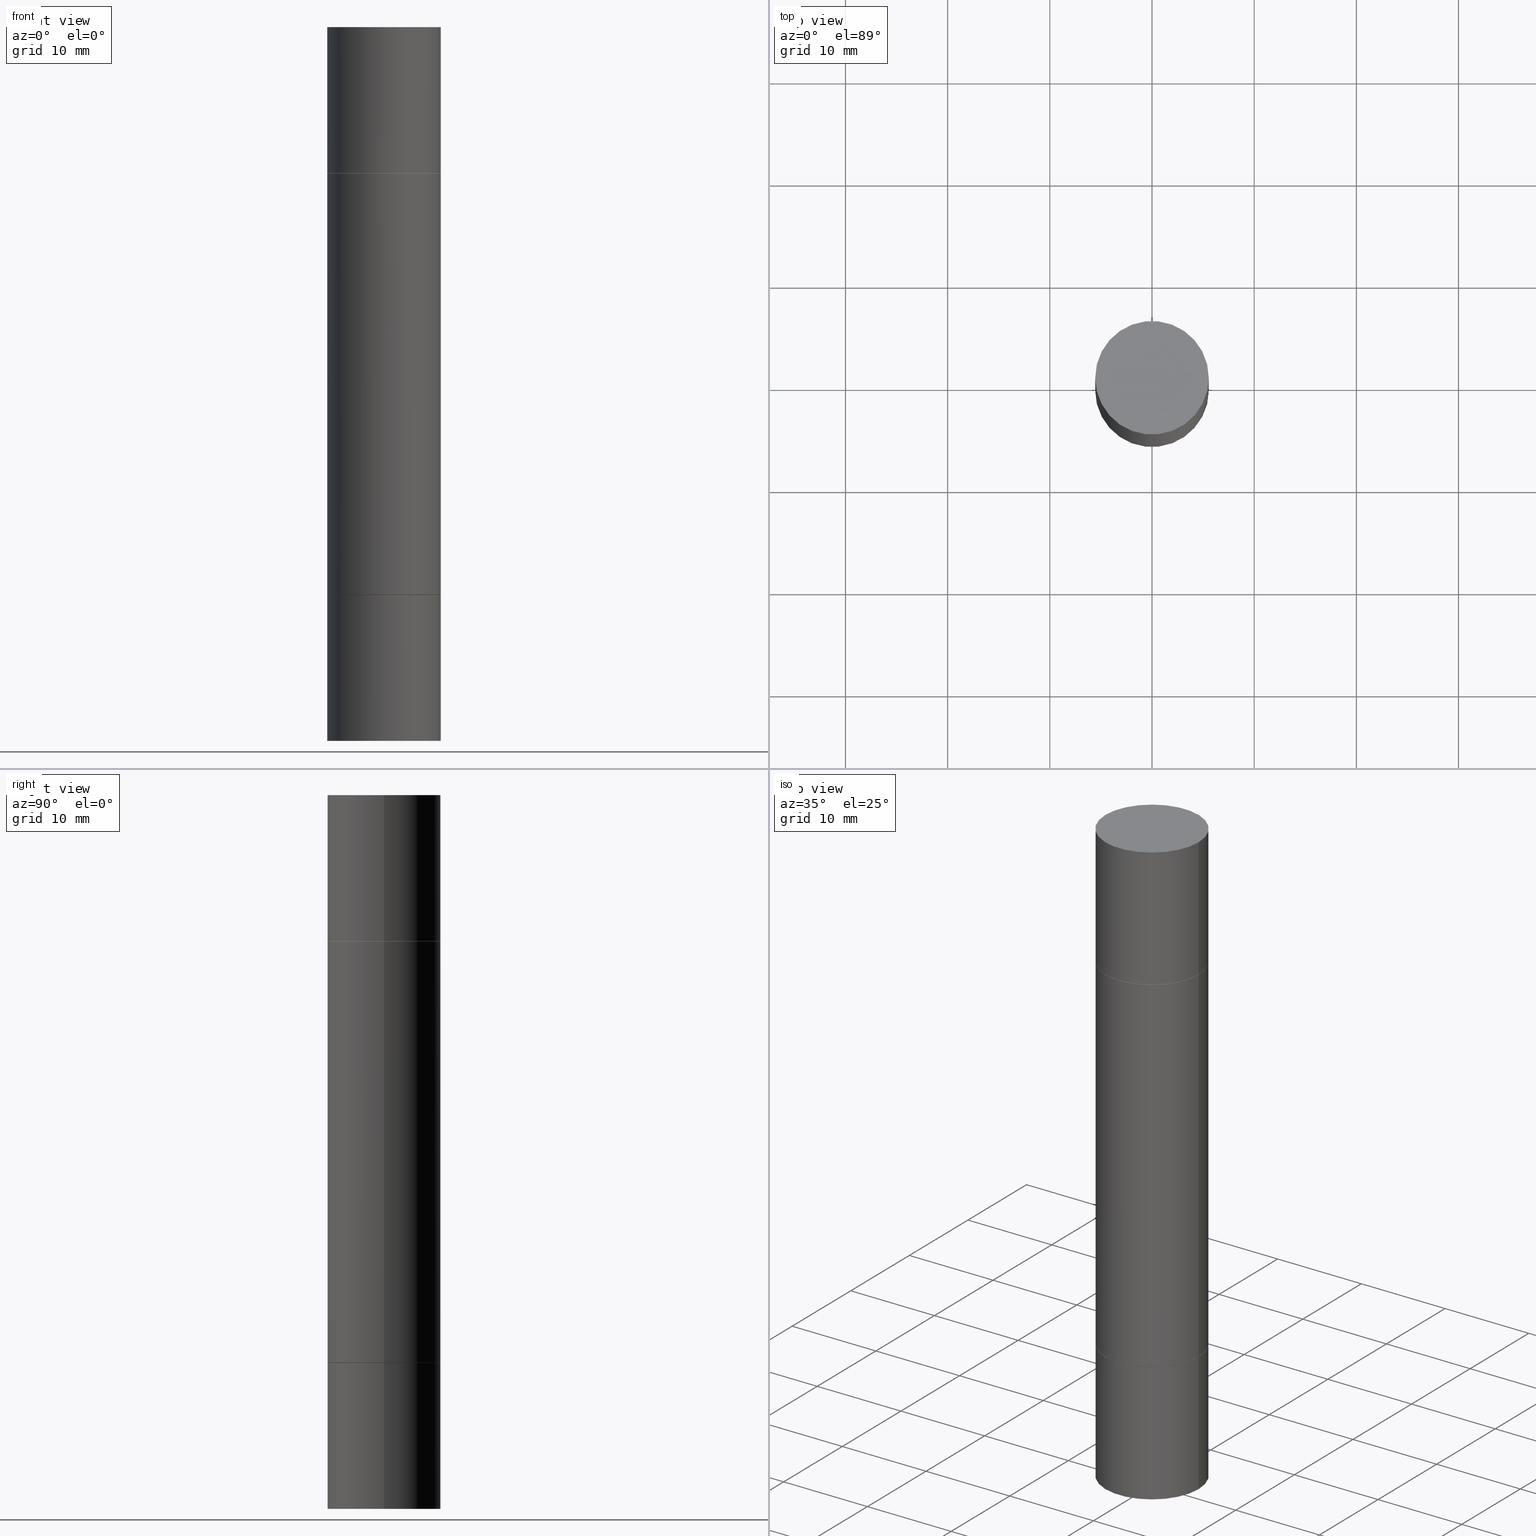
[diagram: canonical four-view strip — front | top / right | iso, engineering-drawing reading convention]
A machine part, canonical four-view strip (front | top / right | iso — engineering-drawing reading convention). The complete STEP part file that produces these views, byte-faithful:
ISO-10303-21;
HEADER;
FILE_DESCRIPTION (( 'STEP AP203' ),
    '1' );
FILE_NAME ('31437.STEP',
    '2024-03-04T15:41:57',
    ( '' ),
    ( '' ),
    'SwSTEP 2.0',
    'SolidWorks 2023',
    '' );
FILE_SCHEMA (( 'CONFIG_CONTROL_DESIGN' ));
ENDSEC;

DATA;
#1 = SECURITY_CLASSIFICATION_LEVEL ( 'unclassified' ) ;
#2 = LINE ( 'NONE', #635, #607 ) ;
#3 = EDGE_CURVE ( 'NONE', #366, #468, #472, .T. ) ;
#4 = DIRECTION ( 'NONE',  ( 1.000000000000000000, 0.000000000000000000, 0.000000000000000000 ) ) ;
#5 = ORIENTED_EDGE ( 'NONE', *, *, #199, .F. ) ;
#6 = CARTESIAN_POINT ( 'NONE',  ( 0.000000000000000000, 0.000000000000000000, -1.374999999999999778 ) ) ;
#7 = ORIENTED_EDGE ( 'NONE', *, *, #441, .T. ) ;
#8 = EDGE_CURVE ( 'NONE', #309, #414, #149, .T. ) ;
#9 = AXIS2_PLACEMENT_3D ( 'NONE', #184, #379, #597 ) ;
#10 = DIRECTION ( 'NONE',  ( 1.000000000000000000, -6.982962677686266711E-15, 0.000000000000000000 ) ) ;
#11 = AXIS2_PLACEMENT_3D ( 'NONE', #324, #44, #4 ) ;
#12 = EDGE_CURVE ( 'NONE', #598, #473, #453, .T. ) ;
#13 = CARTESIAN_POINT ( 'NONE',  ( 0.000000000000000000, 0.000000000000000000, 0.000000000000000000 ) ) ;
#14 = EDGE_LOOP ( 'NONE', ( #663, #269 ) ) ;
#15 = CARTESIAN_POINT ( 'NONE',  ( -0.2187499999999998612, -8.102777219780461591E-15, -2.749999999999999556 ) ) ;
#16 = CARTESIAN_POINT ( 'NONE',  ( 5.350685747933077986E-29, -1.961066936317747467E-15, -0.5619999999999996110 ) ) ;
#17 = ORIENTED_EDGE ( 'NONE', *, *, #202, .F. ) ;
#18 = FACE_OUTER_BOUND ( 'NONE', #547, .T. ) ;
#19 = ADVANCED_FACE ( 'NONE', ( #32 ), #548, .T. ) ;
#20 = CARTESIAN_POINT ( 'NONE',  ( -0.2177499999999999991, -4.655096935098871103E-16, -0.5619999999999996110 ) ) ;
#21 = AXIS2_PLACEMENT_3D ( 'NONE', #13, #228, #302 ) ;
#22 = LINE ( 'NONE', #592, #39 ) ;
#23 = CARTESIAN_POINT ( 'NONE',  ( 5.350685747933077986E-29, -7.639361169388800962E-15, -2.187999999999999723 ) ) ;
#24 = DIRECTION ( 'NONE',  ( -1.000000000000000000, 6.982962677686265922E-15, -4.876176775795935793E-29 ) ) ;
#25 = CARTESIAN_POINT ( 'NONE',  ( -0.2187500000000000000, -7.066155191128507043E-15, -2.187999999999999723 ) ) ;
#26 = ADVANCED_FACE ( 'NONE', ( #603 ), #290, .T. ) ;
#27 = AXIS2_PLACEMENT_3D ( 'NONE', #611, #461, #675 ) ;
#28 = DIRECTION ( 'NONE',  ( -2.445468806185136597E-29, 3.491481338843145583E-15, 1.000000000000000000 ) ) ;
#29 = AXIS2_PLACEMENT_3D ( 'NONE', #649, #646, #72 ) ;
#30 = AXIS2_PLACEMENT_3D ( 'NONE', #6, #674, #170 ) ;
#31 = CARTESIAN_POINT ( 'NONE',  ( 6.725039217009124520E-29, 1.937474974335603146E-18, 5.463695987328526437E-16 ) ) ;
#32 = FACE_OUTER_BOUND ( 'NONE', #395, .T. ) ;
#33 = DIRECTION ( 'NONE',  ( -2.438088387897960049E-29, 3.491481338843145188E-15, 1.000000000000000000 ) ) ;
#34 = ORIENTED_EDGE ( 'NONE', *, *, #3, .T. ) ;
#35 = CARTESIAN_POINT ( 'NONE',  ( -0.2187500000000000000, 1.554312234475219157E-15, -1.076017050993260622E-29 ) ) ;
#36 = EDGE_CURVE ( 'NONE', #206, #399, #588, .T. ) ;
#37 = AXIS2_PLACEMENT_3D ( 'NONE', #554, #317, #94 ) ;
#38 = DIRECTION ( 'NONE',  ( 0.000000000000000000, 1.000000000000000000, -3.746534391310991923E-15 ) ) ;
#39 = VECTOR ( 'NONE', #130, 39.37007874015748143 ) ;
#40 = CIRCLE ( 'NONE', #274, 0.2187500000000000000 ) ;
#41 = VECTOR ( 'NONE', #250, 39.37007874015748143 ) ;
#42 = FACE_OUTER_BOUND ( 'NONE', #451, .T. ) ;
#43 = DIRECTION ( 'NONE',  ( 1.000000000000000000, -6.982962677686269077E-15, 0.000000000000000000 ) ) ;
#44 = DIRECTION ( 'NONE',  ( 0.000000000000000000, 0.000000000000000000, 1.000000000000000000 ) ) ;
#45 = ADVANCED_FACE ( 'NONE', ( #384 ), #387, .T. ) ;
#46 = CARTESIAN_POINT ( 'NONE',  ( -0.2177499999999999991, -6.086855907922961200E-15, -2.187999999999999723 ) ) ;
#47 = DATE_AND_TIME ( #513, #336 ) ;
#48 = ORIENTED_EDGE ( 'NONE', *, *, #150, .T. ) ;
#49 = EDGE_CURVE ( 'NONE', #414, #226, #427, .T. ) ;
#50 = DIRECTION ( 'NONE',  ( -2.445468806185136597E-29, 3.491481338843145583E-15, 1.000000000000000000 ) ) ;
#51 = ORIENTED_EDGE ( 'NONE', *, *, #246, .T. ) ;
#52 = VECTOR ( 'NONE', #166, 39.37007874015748143 ) ;
#53 = CC_DESIGN_APPROVAL ( #239, ( #416 ) ) ;
#54 = APPROVAL_DATE_TIME ( #575, #169 ) ;
#55 = CC_DESIGN_PERSON_AND_ORGANIZATION_ASSIGNMENT ( #617, #357, ( #416 ) ) ;
#56 = DIRECTION ( 'NONE',  ( 0.7071067811865112684, -2.468850131081876830E-15, 0.7071067811865837660 ) ) ;
#57 = DIRECTION ( 'NONE',  ( 2.445468806185136597E-29, 3.492890411551752677E-15, 1.000000000000000000 ) ) ;
#58 = COORDINATED_UNIVERSAL_TIME_OFFSET ( 5, 0, .BEHIND. ) ;
#59 = ORIENTED_EDGE ( 'NONE', *, *, #587, .T. ) ;
#60 = ORIENTED_EDGE ( 'NONE', *, *, #640, .T. ) ;
#61 = DIRECTION ( 'NONE',  ( 1.000000000000000000, -6.982962677686262766E-15, 0.000000000000000000 ) ) ;
#62 = PERSON_AND_ORGANIZATION ( #428, #345 ) ;
#63 = CONICAL_SURFACE ( 'NONE', #626, 0.2177499999999999991, 0.7853981633973970977 ) ;
#64 = CARTESIAN_POINT ( 'NONE',  ( 0.2187500000000000000, -1.525585610769535201E-15, 5.463695987328526437E-16 ) ) ;
#65 = ADVANCED_FACE ( 'NONE', ( #255 ), #267, .T. ) ;
#66 = CIRCLE ( 'NONE', #435, 0.2187500000000000000 ) ;
#67 = DIRECTION ( 'NONE',  ( 1.000000000000000000, -6.982962677686266711E-15, 0.000000000000000000 ) ) ;
#68 = ORIENTED_EDGE ( 'NONE', *, *, #582, .F. ) ;
#69 = DIRECTION ( 'NONE',  ( 2.445468806185136597E-29, 3.492890411551752677E-15, 1.000000000000000000 ) ) ;
#70 = ORIENTED_EDGE ( 'NONE', *, *, #594, .F. ) ;
#71 = ORIENTED_EDGE ( 'NONE', *, *, #153, .F. ) ;
#72 = DIRECTION ( 'NONE',  ( 1.000000000000000000, -6.982962677686266711E-15, 0.000000000000000000 ) ) ;
#73 = CARTESIAN_POINT ( 'NONE',  ( 6.725039217009124520E-29, -9.601573681818649859E-15, -2.750000000000000000 ) ) ;
#74 = CARTESIAN_POINT ( 'NONE',  ( 5.350685747933077986E-29, -1.961066936317747467E-15, -0.5619999999999996110 ) ) ;
#75 = AXIS2_PLACEMENT_3D ( 'NONE', #124, #375, #644 ) ;
#76 = AXIS2_PLACEMENT_3D ( 'NONE', #31, #350, #92 ) ;
#77 = EDGE_CURVE ( 'NONE', #303, #471, #549, .T. ) ;
#78 = ORIENTED_EDGE ( 'NONE', *, *, #8, .T. ) ;
#79 = DIRECTION ( 'NONE',  ( 2.445468806185136597E-29, 3.492890411551752677E-15, 1.000000000000000000 ) ) ;
#80 = ADVANCED_FACE ( 'NONE', ( #558 ), #569, .F. ) ;
#81 = ADVANCED_FACE ( 'NONE', ( #301 ), #186, .T. ) ;
#82 = DIRECTION ( 'NONE',  ( 1.000000000000000000, -6.982962677686267499E-15, 0.000000000000000000 ) ) ;
#83 = ORIENTED_EDGE ( 'NONE', *, *, #176, .T. ) ;
#84 = ADVANCED_FACE ( 'NONE', ( #191 ), #601, .T. ) ;
#85 = CLOSED_SHELL ( 'NONE', ( #433, #660, #479, #511, #104, #19, #506, #122 ) ) ;
#86 = DIRECTION ( 'NONE',  ( 1.000000000000000000, -6.982962677686266711E-15, 0.000000000000000000 ) ) ;
#87 = CARTESIAN_POINT ( 'NONE',  ( 0.000000000000000000, -9.603511156792982543E-15, -2.749999999999999556 ) ) ;
#88 = AXIS2_PLACEMENT_3D ( 'NONE', #148, #559, #556 ) ;
#89 = CONICAL_SURFACE ( 'NONE', #306, 0.2177499999999999991, 0.7853981633973970977 ) ;
#90 = PLANE ( 'NONE',  #490 ) ;
#91 = EDGE_LOOP ( 'NONE', ( #586, #17 ) ) ;
#92 = DIRECTION ( 'NONE',  ( 1.000000000000000000, -6.982962677686266711E-15, 0.000000000000000000 ) ) ;
#93 = ORIENTED_EDGE ( 'NONE', *, *, #12, .T. ) ;
#94 = DIRECTION ( 'NONE',  ( 1.000000000000000000, -6.982962677686266711E-15, 0.000000000000000000 ) ) ;
#95 = LINE ( 'NONE', #98, #509 ) ;
#96 = DIRECTION ( 'NONE',  ( 2.438088387897959769E-29, 3.492890411551753071E-15, 1.000000000000000000 ) ) ;
#97 = CLOSED_SHELL ( 'NONE', ( #641, #282, #323, #434 ) ) ;
#98 = CARTESIAN_POINT ( 'NONE',  ( -0.2187500000000000000, -8.102777219780460014E-15, -2.749999999999999556 ) ) ;
#99 = CIRCLE ( 'NONE', #475, 0.2187499999999998612 ) ;
#100 = EDGE_CURVE ( 'NONE', #132, #309, #599, .T. ) ;
#101 = CARTESIAN_POINT ( 'NONE',  ( -0.2177499999999999991, -4.671934973029966481E-16, -0.5619999999999996110 ) ) ;
#102 = LINE ( 'NONE', #313, #562 ) ;
#103 = ORIENTED_EDGE ( 'NONE', *, *, #77, .T. ) ;
#104 = ADVANCED_FACE ( 'NONE', ( #220 ), #63, .T. ) ;
#105 = AXIS2_PLACEMENT_3D ( 'NONE', #662, #555, #442 ) ;
#106 = DIRECTION ( 'NONE',  ( -1.000000000000000000, 6.982962677686265922E-15, -9.839502134516470631E-33 ) ) ;
#107 = VERTEX_POINT ( 'NONE', #233 ) ;
#108 = ADVANCED_FACE ( 'NONE', ( #510 ), #460, .T. ) ;
#109 = ORIENTED_EDGE ( 'NONE', *, *, #421, .T. ) ;
#110 = PERSON_AND_ORGANIZATION ( #428, #345 ) ;
#111 = DIRECTION ( 'NONE',  ( -2.445468806185136877E-29, 3.491481338843145188E-15, 1.000000000000000000 ) ) ;
#112 = CIRCLE ( 'NONE', #415, 0.2187500000000000000 ) ;
#113 = COORDINATED_UNIVERSAL_TIME_OFFSET ( 5, 0, .BEHIND. ) ;
#114 = ORIENTED_EDGE ( 'NONE', *, *, #441, .F. ) ;
#115 = DIRECTION ( 'NONE',  ( 0.000000000000000000, 1.000000000000000000, -3.746534391310991923E-15 ) ) ;
#116 = CARTESIAN_POINT ( 'NONE',  ( -0.2187500000000000000, 5.211692063408169128E-16, 5.463695987328561936E-16 ) ) ;
#117 = PLANE ( 'NONE',  #187 ) ;
#118 = ORIENTED_EDGE ( 'NONE', *, *, #560, .T. ) ;
#119 = FACE_OUTER_BOUND ( 'NONE', #159, .T. ) ;
#120 = ORIENTED_EDGE ( 'NONE', *, *, #100, .F. ) ;
#121 = DIRECTION ( 'NONE',  ( 2.445468806185136597E-29, 3.492890411551752677E-15, 1.000000000000000000 ) ) ;
#122 = ADVANCED_FACE ( 'NONE', ( #147 ), #90, .F. ) ;
#123 = CIRCLE ( 'NONE', #497, 0.2177499999999999991 ) ;
#124 = CARTESIAN_POINT ( 'NONE',  ( 5.348240279126892383E-29, -7.635869688049957955E-15, -2.186999999999999833 ) ) ;
#125 = AXIS2_PLACEMENT_3D ( 'NONE', #347, #289, #612 ) ;
#126 = ORIENTED_EDGE ( 'NONE', *, *, #150, .F. ) ;
#127 = DIRECTION ( 'NONE',  ( 1.000000000000000000, -6.982962677686266711E-15, 0.000000000000000000 ) ) ;
#128 = CARTESIAN_POINT ( 'NONE',  ( -0.2187499999999999445, -4.638258897167772766E-16, -0.5629999999999997229 ) ) ;
#129 = DIRECTION ( 'NONE',  ( 1.000000000000000000, -6.982962677686266711E-15, 0.000000000000000000 ) ) ;
#130 = DIRECTION ( 'NONE',  ( -0.7071067811865112684, 2.381258160590891430E-15, -0.7071067811865837660 ) ) ;
#131 = DIRECTION ( 'NONE',  ( 1.000000000000000000, -6.982962677686262766E-15, 0.000000000000000000 ) ) ;
#132 = VERTEX_POINT ( 'NONE', #128 ) ;
#133 = VERTEX_POINT ( 'NONE', #536 ) ;
#134 = PLANE ( 'NONE',  #244 ) ;
#135 = CIRCLE ( 'NONE', #145, 0.2187499999999999445 ) ;
#136 = LOCAL_TIME ( 10, 41, 57.00000000000000000, #58 ) ;
#137 = EDGE_CURVE ( 'NONE', #346, #672, #362, .T. ) ;
#138 = ORIENTED_EDGE ( 'NONE', *, *, #616, .F. ) ;
#139 = DIRECTION ( 'NONE',  ( -2.445468806185136597E-29, -3.492890411551752677E-15, -1.000000000000000000 ) ) ;
#140 = ADVANCED_FACE ( 'NONE', ( #18 ), #333, .F. ) ;
#141 = CARTESIAN_POINT ( 'NONE',  ( 5.348240279126892383E-29, -7.635869688049957955E-15, -2.186999999999999833 ) ) ;
#142 = CYLINDRICAL_SURFACE ( 'NONE', #320, 0.2187499999999998612 ) ;
#143 = DIRECTION ( 'NONE',  ( 1.000000000000000000, -6.982962677686266711E-15, 4.876176775795935232E-29 ) ) ;
#144 = CARTESIAN_POINT ( 'NONE',  ( 3.362519608504561700E-29, -4.800786840909324141E-15, -1.374999999999999778 ) ) ;
#145 = AXIS2_PLACEMENT_3D ( 'NONE', #372, #79, #276 ) ;
#146 = ORIENTED_EDGE ( 'NONE', *, *, #561, .T. ) ;
#147 = FACE_OUTER_BOUND ( 'NONE', #368, .T. ) ;
#148 = CARTESIAN_POINT ( 'NONE',  ( 5.348240279126892383E-29, -1.964559826729300003E-15, -0.5629999999999997229 ) ) ;
#149 = LINE ( 'NONE', #666, #247 ) ;
#150 = EDGE_CURVE ( 'NONE', #241, #132, #22, .T. ) ;
#151 = AXIS2_PLACEMENT_3D ( 'NONE', #396, #620, #207 ) ;
#152 = CARTESIAN_POINT ( 'NONE',  ( 0.000000000000000000, -9.603511156792982543E-15, -2.749999999999999556 ) ) ;
#153 = EDGE_CURVE ( 'NONE', #412, #133, #390, .T. ) ;
#154 = VECTOR ( 'NONE', #526, 39.37007874015748143 ) ;
#155 = SECURITY_CLASSIFICATION ( '', '', #1 ) ;
#156 = DATE_TIME_ROLE ( 'creation_date' ) ;
#157 = CARTESIAN_POINT ( 'NONE',  ( 6.725039217009124520E-29, 1.937474974335603146E-18, 5.463695987328526437E-16 ) ) ;
#158 = EDGE_CURVE ( 'NONE', #473, #468, #615, .T. ) ;
#159 = EDGE_LOOP ( 'NONE', ( #284, #595, #632, #578 ) ) ;
#160 = CARTESIAN_POINT ( 'NONE',  ( 5.348240279126892383E-29, -1.964559826729300003E-15, -0.5629999999999997229 ) ) ;
#161 = APPROVAL_ROLE ( '' ) ;
#162 = PLANE ( 'NONE',  #30 ) ;
#163 = ORIENTED_EDGE ( 'NONE', *, *, #561, .F. ) ;
#164 = CLOSED_SHELL ( 'NONE', ( #557, #81, #295, #45 ) ) ;
#165 = PERSON_AND_ORGANIZATION_ROLE ( 'creator' ) ;
#166 = DIRECTION ( 'NONE',  ( 0.7071067811865112684, -7.407546758114119172E-15, -0.7071067811865837660 ) ) ;
#167 = ORIENTED_EDGE ( 'NONE', *, *, #312, .T. ) ;
#168 = AXIS2_PLACEMENT_3D ( 'NONE', #514, #623, #61 ) ;
#169 = APPROVAL ( #264, 'UNSPECIFIED' ) ;
#170 = DIRECTION ( 'NONE',  ( 0.000000000000000000, 1.000000000000000000, -3.492185875197449524E-15 ) ) ;
#171 = ORIENTED_EDGE ( 'NONE', *, *, #430, .F. ) ;
#172 = FACE_OUTER_BOUND ( 'NONE', #381, .T. ) ;
#173 = ORIENTED_EDGE ( 'NONE', *, *, #582, .T. ) ;
#174 = CARTESIAN_POINT ( 'NONE',  ( -0.2187500000000000000, 5.211692063408171100E-16, -0.5619999999999996110 ) ) ;
#175 = DIRECTION ( 'NONE',  ( 1.000000000000000000, -6.982962677686266711E-15, 0.000000000000000000 ) ) ;
#176 = EDGE_CURVE ( 'NONE', #241, #278, #262, .T. ) ;
#177 = AXIS2_PLACEMENT_3D ( 'NONE', #419, #121, #580 ) ;
#178 = DIRECTION ( 'NONE',  ( -2.438088387897959769E-29, -3.492890411551753071E-15, -1.000000000000000000 ) ) ;
#179 = ORIENTED_EDGE ( 'NONE', *, *, #458, .F. ) ;
#180 = DIRECTION ( 'NONE',  ( 1.000000000000000000, -6.982962677686265922E-15, 9.839502134516470631E-33 ) ) ;
#181 = LINE ( 'NONE', #377, #621 ) ;
#182 = EDGE_LOOP ( 'NONE', ( #167, #596, #422, #185 ) ) ;
#183 = VERTEX_POINT ( 'NONE', #328 ) ;
#184 = CARTESIAN_POINT ( 'NONE',  ( 5.350685747933077986E-29, -7.639361169388800962E-15, -2.187999999999999723 ) ) ;
#185 = ORIENTED_EDGE ( 'NONE', *, *, #391, .F. ) ;
#186 = PLANE ( 'NONE',  #645 ) ;
#187 = AXIS2_PLACEMENT_3D ( 'NONE', #325, #358, #106 ) ;
#188 = CARTESIAN_POINT ( 'NONE',  ( 6.725039217009124520E-29, 1.937474974335603146E-18, 5.463695987328526437E-16 ) ) ;
#189 = APPROVAL_PERSON_ORGANIZATION ( #454, #169, #161 ) ;
#190 = DIRECTION ( 'NONE',  ( 2.445468806185136597E-29, 3.492890411551752677E-15, 1.000000000000000000 ) ) ;
#191 = FACE_OUTER_BOUND ( 'NONE', #614, .T. ) ;
#192 = DIRECTION ( 'NONE',  ( -2.445468806185136877E-29, -3.492890411551753071E-15, -1.000000000000000000 ) ) ;
#193 = DIRECTION ( 'NONE',  ( 2.438088387897959769E-29, 3.492890411551753071E-15, 1.000000000000000000 ) ) ;
#194 = ORIENTED_EDGE ( 'NONE', *, *, #230, .F. ) ;
#195 = AXIS2_PLACEMENT_3D ( 'NONE', #214, #409, #400 ) ;
#196 = CC_DESIGN_APPROVAL ( #169, ( #155 ) ) ;
#197 = LINE ( 'NONE', #35, #41 ) ;
#198 = DIRECTION ( 'NONE',  ( -2.445468806185136877E-29, -3.492890411551753071E-15, -1.000000000000000000 ) ) ;
#199 = EDGE_CURVE ( 'NONE', #468, #590, #530, .T. ) ;
#200 = ORIENTED_EDGE ( 'NONE', *, *, #340, .T. ) ;
#201 = PRODUCT_DEFINITION_SHAPE ( 'NONE', 'NONE',  #341 ) ;
#202 = EDGE_CURVE ( 'NONE', #471, #303, #40, .T. ) ;
#203 = COORDINATED_UNIVERSAL_TIME_OFFSET ( 5, 0, .BEHIND. ) ;
#204 = VERTEX_POINT ( 'NONE', #315 ) ;
#205 = PLANE ( 'NONE',  #195 ) ;
#206 = VERTEX_POINT ( 'NONE', #116 ) ;
#207 = DIRECTION ( 'NONE',  ( 1.000000000000000000, -6.982962677686266711E-15, 0.000000000000000000 ) ) ;
#208 = DATE_AND_TIME ( #633, #136 ) ;
#209 = CARTESIAN_POINT ( 'NONE',  ( 0.2187499999999999445, -3.492082912473170057E-15, -0.5629999999999997229 ) ) ;
#210 = AXIS2_PLACEMENT_3D ( 'NONE', #440, #193, #661 ) ;
#211 = VERTEX_POINT ( 'NONE', #373 ) ;
#212 = SHAPE_DEFINITION_REPRESENTATION ( #201, #310 ) ;
#213 = CC_DESIGN_PERSON_AND_ORGANIZATION_ASSIGNMENT ( #353, #165, ( #341 ) ) ;
#214 = CARTESIAN_POINT ( 'NONE',  ( 1.527523085743937699E-15, 0.2187500000000000000, -5.463695987328526437E-16 ) ) ;
#215 = ORIENTED_EDGE ( 'NONE', *, *, #230, .T. ) ;
#216 = MANIFOLD_SOLID_BREP ( 'Mirror1[1]', #664 ) ;
#217 = MECHANICAL_CONTEXT ( 'NONE', #637, 'mechanical' ) ;
#218 = MANIFOLD_SOLID_BREP ( 'Mirror1[4]', #291 ) ;
#219 = CARTESIAN_POINT ( 'NONE',  ( 1.527523085743924091E-15, 0.2187499999999923395, -2.188000000000000611 ) ) ;
#220 = FACE_OUTER_BOUND ( 'NONE', #581, .T. ) ;
#221 = ORIENTED_EDGE ( 'NONE', *, *, #657, .T. ) ;
#222 = AXIS2_PLACEMENT_3D ( 'NONE', #589, #478, #420 ) ;
#223 = CIRCLE ( 'NONE', #263, 0.2187500000000000000 ) ;
#224 = PLANE ( 'NONE',  #392 ) ;
#225 = EDGE_CURVE ( 'NONE', #598, #366, #573, .T. ) ;
#226 = VERTEX_POINT ( 'NONE', #469 ) ;
#227 = MANIFOLD_SOLID_BREP ( 'Mirror1[3]', #97 ) ;
#228 = DIRECTION ( 'NONE',  ( -2.445468806185136597E-29, 3.491481338843145583E-15, 1.000000000000000000 ) ) ;
#229 = EDGE_LOOP ( 'NONE', ( #642, #680 ) ) ;
#230 = EDGE_CURVE ( 'NONE', #672, #183, #2, .T. ) ;
#231 = ORIENTED_EDGE ( 'NONE', *, *, #403, .F. ) ;
#232 = CARTESIAN_POINT ( 'NONE',  ( 5.350685747933077986E-29, -1.961066936317747467E-15, -0.5619999999999996110 ) ) ;
#233 = CARTESIAN_POINT ( 'NONE',  ( -0.2187500000000000000, 5.211692063408171100E-16, -0.5619999999999996110 ) ) ;
#234 = CIRCLE ( 'NONE', #485, 0.2187500000000000000 ) ;
#235 = CC_DESIGN_SECURITY_CLASSIFICATION ( #155, ( #416 ) ) ;
#236 = DIRECTION ( 'NONE',  ( 1.000000000000000000, -6.982962677686265922E-15, 9.839502134516470631E-33 ) ) ;
#237 = AXIS2_PLACEMENT_3D ( 'NONE', #352, #507, #397 ) ;
#238 = ORIENTED_EDGE ( 'NONE', *, *, #385, .T. ) ;
#239 = APPROVAL ( #522, 'UNSPECIFIED' ) ;
#240 = DIRECTION ( 'NONE',  ( 2.445468806185136597E-29, 3.492890411551752677E-15, 1.000000000000000000 ) ) ;
#241 = VERTEX_POINT ( 'NONE', #354 ) ;
#242 = CYLINDRICAL_SURFACE ( 'NONE', #600, 0.2187500000000000000 ) ;
#243 = LINE ( 'NONE', #546, #467 ) ;
#244 = AXIS2_PLACEMENT_3D ( 'NONE', #337, #178, #236 ) ;
#245 = DIRECTION ( 'NONE',  ( 1.000000000000000000, -6.982962677686266711E-15, 0.000000000000000000 ) ) ;
#246 = EDGE_CURVE ( 'NONE', #211, #590, #99, .T. ) ;
#247 = VECTOR ( 'NONE', #503, 39.37007874015748143 ) ;
#248 = DIRECTION ( 'NONE',  ( -2.445468806185136597E-29, -3.492890411551752677E-15, -1.000000000000000000 ) ) ;
#249 = ORIENTED_EDGE ( 'NONE', *, *, #153, .T. ) ;
#250 = DIRECTION ( 'NONE',  ( -2.445468806185136877E-29, 3.491481338843145188E-15, 1.000000000000000000 ) ) ;
#251 = CARTESIAN_POINT ( 'NONE',  ( 0.2187500000000000000, -1.113103424253685260E-14, -2.749999999999999556 ) ) ;
#252 = VECTOR ( 'NONE', #470, 39.37007874015748143 ) ;
#253 = EDGE_CURVE ( 'NONE', #672, #346, #655, .T. ) ;
#254 = CARTESIAN_POINT ( 'NONE',  ( 0.2187500000000000000, -1.112909676756251991E-14, -2.750000000000000000 ) ) ;
#255 = FACE_OUTER_BOUND ( 'NONE', #272, .T. ) ;
#256 = CALENDAR_DATE ( 2024, 4, 3 ) ;
#257 = CARTESIAN_POINT ( 'NONE',  ( 0.2187499999999999445, -9.163392773793829586E-15, -2.186999999999999833 ) ) ;
#258 = APPROVAL_ROLE ( '' ) ;
#259 = AXIS2_PLACEMENT_3D ( 'NONE', #349, #96, #443 ) ;
#260 = FACE_OUTER_BOUND ( 'NONE', #651, .T. ) ;
#261 = AXIS2_PLACEMENT_3D ( 'NONE', #160, #57, #129 ) ;
#262 = CIRCLE ( 'NONE', #177, 0.2177499999999999991 ) ;
#263 = AXIS2_PLACEMENT_3D ( 'NONE', #668, #190, #610 ) ;
#264 = APPROVAL_STATUS ( 'not_yet_approved' ) ;
#265 = CARTESIAN_POINT ( 'NONE',  ( 0.2177499999999999991, -3.481607059383932295E-15, -0.5619999999999996110 ) ) ;
#266 = AXIS2_PLACEMENT_3D ( 'NONE', #141, #670, #43 ) ;
#267 = CONICAL_SURFACE ( 'NONE', #151, 0.2177499999999999991, 0.7853981633973970977 ) ;
#268 = ORIENTED_EDGE ( 'NONE', *, *, #640, .F. ) ;
#269 = ORIENTED_EDGE ( 'NONE', *, *, #403, .T. ) ;
#270 = ORIENTED_EDGE ( 'NONE', *, *, #246, .F. ) ;
#271 = DIRECTION ( 'NONE',  ( -0.000000000000000000, -3.492185875197449130E-15, -1.000000000000000000 ) ) ;
#272 = EDGE_LOOP ( 'NONE', ( #281, #480, #356, #34 ) ) ;
#273 = CARTESIAN_POINT ( 'NONE',  ( 0.2177499999999999991, -3.481607059383932295E-15, -0.5619999999999996110 ) ) ;
#274 = AXIS2_PLACEMENT_3D ( 'NONE', #351, #455, #618 ) ;
#275 = ADVANCED_FACE ( 'NONE', ( #322 ), #162, .F. ) ;
#276 = DIRECTION ( 'NONE',  ( 1.000000000000000000, -6.982962677686266711E-15, 0.000000000000000000 ) ) ;
#277 = DIRECTION ( 'NONE',  ( -2.445468806185136877E-29, -3.492890411551753071E-15, -1.000000000000000000 ) ) ;
#278 = VERTEX_POINT ( 'NONE', #459 ) ;
#279 = DIRECTION ( 'NONE',  ( -2.445468806185136597E-29, 3.491481338843145583E-15, 1.000000000000000000 ) ) ;
#280 = FACE_OUTER_BOUND ( 'NONE', #606, .T. ) ;
#281 = ORIENTED_EDGE ( 'NONE', *, *, #158, .F. ) ;
#282 = ADVANCED_FACE ( 'NONE', ( #260 ), #205, .T. ) ;
#283 = AXIS2_PLACEMENT_3D ( 'NONE', #23, #286, #423 ) ;
#284 = ORIENTED_EDGE ( 'NONE', *, *, #657, .F. ) ;
#285 = CARTESIAN_POINT ( 'NONE',  ( 5.350685747933077986E-29, -1.961066936317747467E-15, -0.5619999999999996110 ) ) ;
#286 = DIRECTION ( 'NONE',  ( -2.445468806185136597E-29, 3.491481338843145583E-15, 1.000000000000000000 ) ) ;
#287 = DIRECTION ( 'NONE',  ( 2.438088387897960049E-29, -3.491481338843145188E-15, -1.000000000000000000 ) ) ;
#288 = CYLINDRICAL_SURFACE ( 'NONE', #222, 0.2187500000000000000 ) ;
#289 = DIRECTION ( 'NONE',  ( -2.445468806185136597E-29, -3.492890411551752677E-15, -1.000000000000000000 ) ) ;
#290 = PLANE ( 'NONE',  #210 ) ;
#291 = CLOSED_SHELL ( 'NONE', ( #84, #26, #80, #531 ) ) ;
#292 = DESIGN_CONTEXT ( 'detailed design', #551, 'design' ) ;
#293 = AXIS2_PLACEMENT_3D ( 'NONE', #144, #344, #38 ) ;
#294 = DIRECTION ( 'NONE',  ( 2.445468806185136597E-29, 3.492890411551752677E-15, 1.000000000000000000 ) ) ;
#295 = ADVANCED_FACE ( 'NONE', ( #518 ), #224, .F. ) ;
#296 = ORIENTED_EDGE ( 'NONE', *, *, #643, .T. ) ;
#297 = CARTESIAN_POINT ( 'NONE',  ( 5.350685747933077986E-29, -7.639361169388800962E-15, -2.187999999999999723 ) ) ;
#298 = AXIS2_PLACEMENT_3D ( 'NONE', #188, #604, #496 ) ;
#299 = LINE ( 'NONE', #251, #465 ) ;
#300 = ORIENTED_EDGE ( 'NONE', *, *, #540, .F. ) ;
#301 = FACE_OUTER_BOUND ( 'NONE', #229, .T. ) ;
#302 = DIRECTION ( 'NONE',  ( 1.000000000000000000, -6.982962677686266711E-15, 4.876176775795935232E-29 ) ) ;
#303 = VERTEX_POINT ( 'NONE', #413 ) ;
#304 = DIRECTION ( 'NONE',  ( -2.445468806185136877E-29, -3.492890411551753071E-15, -1.000000000000000000 ) ) ;
#305 = CONICAL_SURFACE ( 'NONE', #283, 0.2177499999999999991, 0.7853981633973970977 ) ;
#306 = AXIS2_PLACEMENT_3D ( 'NONE', #436, #553, #449 ) ;
#307 = DIRECTION ( 'NONE',  ( -0.7071067811865112684, 2.381258160590891430E-15, -0.7071067811865837660 ) ) ;
#308 = DIRECTION ( 'NONE',  ( 1.000000000000000000, -6.982962677686262766E-15, 0.000000000000000000 ) ) ;
#309 = VERTEX_POINT ( 'NONE', #209 ) ;
#310 = ADVANCED_BREP_SHAPE_REPRESENTATION ( '31437', ( #653, #216, #227, #218, #654, #11 ), #519 ) ;
#311 = APPLICATION_PROTOCOL_DEFINITION ( 'international standard', 'config_control_design', 1994, #637 ) ;
#312 = EDGE_CURVE ( 'NONE', #133, #412, #355, .T. ) ;
#313 = CARTESIAN_POINT ( 'NONE',  ( -0.2187500000000000000, -8.102777219780460014E-15, -2.749999999999999556 ) ) ;
#314 = ORIENTED_EDGE ( 'NONE', *, *, #340, .F. ) ;
#315 = CARTESIAN_POINT ( 'NONE',  ( -0.2187500000000000000, 5.211692063408169128E-16, 5.463695987328561936E-16 ) ) ;
#316 = PERSON_AND_ORGANIZATION_ROLE ( 'classification_officer' ) ;
#317 = DIRECTION ( 'NONE',  ( 2.445468806185136597E-29, 3.492890411551752677E-15, 1.000000000000000000 ) ) ;
#318 = CARTESIAN_POINT ( 'NONE',  ( 3.362519608504561700E-29, -4.800786840909324141E-15, -1.374999999999999778 ) ) ;
#319 = ORIENTED_EDGE ( 'NONE', *, *, #176, .F. ) ;
#320 = AXIS2_PLACEMENT_3D ( 'NONE', #444, #139, #82 ) ;
#321 = PERSON_AND_ORGANIZATION ( #428, #345 ) ;
#322 = FACE_OUTER_BOUND ( 'NONE', #602, .T. ) ;
#323 = ADVANCED_FACE ( 'NONE', ( #466 ), #117, .F. ) ;
#324 = CARTESIAN_POINT ( 'NONE',  ( 0.000000000000000000, 0.000000000000000000, 0.000000000000000000 ) ) ;
#325 = CARTESIAN_POINT ( 'NONE',  ( 1.527523085743924091E-15, 0.2187499999999980294, -0.5620000000000004992 ) ) ;
#326 = EDGE_CURVE ( 'NONE', #204, #359, #647, .T. ) ;
#327 = FACE_OUTER_BOUND ( 'NONE', #389, .T. ) ;
#328 = CARTESIAN_POINT ( 'NONE',  ( 0.2187500000000000000, -9.166884255132671016E-15, -2.187999999999999723 ) ) ;
#329 = CONICAL_SURFACE ( 'NONE', #29, 0.2177499999999999991, 0.7853981633973970977 ) ;
#330 = FACE_OUTER_BOUND ( 'NONE', #182, .T. ) ;
#331 = FACE_OUTER_BOUND ( 'NONE', #502, .T. ) ;
#332 = APPROVAL ( #525, 'UNSPECIFIED' ) ;
#333 = PLANE ( 'NONE',  #364 ) ;
#334 = DIRECTION ( 'NONE',  ( -2.445468806185136597E-29, -3.492890411551752677E-15, -1.000000000000000000 ) ) ;
#335 = AXIS2_PLACEMENT_3D ( 'NONE', #482, #532, #426 ) ;
#336 = LOCAL_TIME ( 10, 41, 57.00000000000000000, #203 ) ;
#337 = CARTESIAN_POINT ( 'NONE',  ( 5.350685747933077986E-29, -1.961066936317747467E-15, -0.5619999999999996110 ) ) ;
#338 = ORIENTED_EDGE ( 'NONE', *, *, #8, .F. ) ;
#339 = ORIENTED_EDGE ( 'NONE', *, *, #36, .F. ) ;
#340 = EDGE_CURVE ( 'NONE', #132, #226, #407, .T. ) ;
#341 = PRODUCT_DEFINITION ( 'UNKNOWN', '', #416, #292 ) ;
#342 = ORIENTED_EDGE ( 'NONE', *, *, #594, .T. ) ;
#343 = AXIS2_PLACEMENT_3D ( 'NONE', #157, #567, #10 ) ;
#344 = DIRECTION ( 'NONE',  ( -0.000000000000000000, -3.492185875197449130E-15, -1.000000000000000000 ) ) ;
#345 = ORGANIZATION ( 'UNSPECIFIED', 'UNSPECIFIED', '' ) ;
#346 = VERTEX_POINT ( 'NONE', #417 ) ;
#347 = CARTESIAN_POINT ( 'NONE',  ( 0.000000000000000000, -9.603511156792982543E-15, -2.749999999999999556 ) ) ;
#348 = CC_DESIGN_DATE_AND_TIME_ASSIGNMENT ( #47, #156, ( #341 ) ) ;
#349 = CARTESIAN_POINT ( 'NONE',  ( 1.527523085743924091E-15, 0.2187499999999980294, -0.5620000000000004992 ) ) ;
#350 = DIRECTION ( 'NONE',  ( 2.445468806185136597E-29, 3.492890411551752677E-15, 1.000000000000000000 ) ) ;
#351 = CARTESIAN_POINT ( 'NONE',  ( 5.350685747933077986E-29, -1.961066936317747467E-15, -0.5619999999999996110 ) ) ;
#352 = CARTESIAN_POINT ( 'NONE',  ( 5.350685747933077986E-29, -7.639361169388800962E-15, -2.187999999999999723 ) ) ;
#353 = PERSON_AND_ORGANIZATION ( #428, #345 ) ;
#354 = CARTESIAN_POINT ( 'NONE',  ( -0.2177499999999999991, -4.655096935098871103E-16, -0.5619999999999996110 ) ) ;
#355 = CIRCLE ( 'NONE', #380, 0.2177499999999999991 ) ;
#356 = ORIENTED_EDGE ( 'NONE', *, *, #225, .T. ) ;
#357 = PERSON_AND_ORGANIZATION_ROLE ( 'design_supplier' ) ;
#358 = DIRECTION ( 'NONE',  ( 2.438088387897959769E-29, 3.492890411551753071E-15, 1.000000000000000000 ) ) ;
#359 = VERTEX_POINT ( 'NONE', #64 ) ;
#360 = PERSON_AND_ORGANIZATION ( #428, #345 ) ;
#361 = CARTESIAN_POINT ( 'NONE',  ( 5.350685747933077986E-29, -1.961066936317747467E-15, -0.5619999999999996110 ) ) ;
#362 = CIRCLE ( 'NONE', #574, 0.2187500000000000000 ) ;
#363 = LINE ( 'NONE', #273, #52 ) ;
#364 = AXIS2_PLACEMENT_3D ( 'NONE', #285, #538, #180 ) ;
#365 = CARTESIAN_POINT ( 'NONE',  ( 5.350685747933077986E-29, -7.639361169388800962E-15, -2.187999999999999723 ) ) ;
#366 = VERTEX_POINT ( 'NONE', #625 ) ;
#367 = DIRECTION ( 'NONE',  ( 2.438088387897960049E-29, -3.491481338843145188E-15, -1.000000000000000000 ) ) ;
#368 = EDGE_LOOP ( 'NONE', ( #376, #71 ) ) ;
#369 = EDGE_CURVE ( 'NONE', #206, #471, #102, .T. ) ;
#370 = CYLINDRICAL_SURFACE ( 'NONE', #21, 0.2187500000000000000 ) ;
#371 = DIRECTION ( 'NONE',  ( -2.445468806185136597E-29, -3.492890411551752677E-15, -1.000000000000000000 ) ) ;
#372 = CARTESIAN_POINT ( 'NONE',  ( 5.348240279126892383E-29, -1.964559826729300003E-15, -0.5629999999999997229 ) ) ;
#373 = CARTESIAN_POINT ( 'NONE',  ( 0.2187499999999998612, -4.910196419563181534E-15, -1.374999999999999778 ) ) ;
#374 = CIRCLE ( 'NONE', #88, 0.2187499999999999445 ) ;
#375 = DIRECTION ( 'NONE',  ( -2.445468806185136597E-29, 3.491481338843145583E-15, 1.000000000000000000 ) ) ;
#376 = ORIENTED_EDGE ( 'NONE', *, *, #312, .F. ) ;
#377 = CARTESIAN_POINT ( 'NONE',  ( -0.2177499999999999991, -6.092154362271183602E-15, -2.187999999999999723 ) ) ;
#378 = ORIENTED_EDGE ( 'NONE', *, *, #137, .T. ) ;
#379 = DIRECTION ( 'NONE',  ( -2.445468806185136597E-29, 3.491481338843145583E-15, 1.000000000000000000 ) ) ;
#380 = AXIS2_PLACEMENT_3D ( 'NONE', #577, #50, #630 ) ;
#381 = EDGE_LOOP ( 'NONE', ( #300, #249, #533, #171 ) ) ;
#382 = APPROVAL_PERSON_ORGANIZATION ( #321, #239, #258 ) ;
#383 =( LENGTH_UNIT ( ) NAMED_UNIT ( * ) SI_UNIT ( $, .METRE. ) );
#384 = FACE_OUTER_BOUND ( 'NONE', #529, .T. ) ;
#385 = EDGE_CURVE ( 'NONE', #278, #309, #363, .T. ) ;
#386 = CARTESIAN_POINT ( 'NONE',  ( 0.2177499999999999991, -3.481607059383932295E-15, -0.5619999999999996110 ) ) ;
#387 = CYLINDRICAL_SURFACE ( 'NONE', #648, 0.2187500000000000000 ) ;
#388 =( NAMED_UNIT ( * ) SI_UNIT ( $, .STERADIAN. ) SOLID_ANGLE_UNIT ( ) );
#389 = EDGE_LOOP ( 'NONE', ( #5, #631, #342, #163 ) ) ;
#390 = CIRCLE ( 'NONE', #237, 0.2177499999999999991 ) ;
#391 = EDGE_CURVE ( 'NONE', #133, #414, #474, .T. ) ;
#392 = AXIS2_PLACEMENT_3D ( 'NONE', #219, #367, #678 ) ;
#393 = DIRECTION ( 'NONE',  ( -2.445468806185136877E-29, -3.492890411551753071E-15, -1.000000000000000000 ) ) ;
#394 = FACE_OUTER_BOUND ( 'NONE', #457, .T. ) ;
#395 = EDGE_LOOP ( 'NONE', ( #314, #68, #78, #650 ) ) ;
#396 = CARTESIAN_POINT ( 'NONE',  ( 5.350685747933077986E-29, -1.961066936317747467E-15, -0.5619999999999996110 ) ) ;
#397 = DIRECTION ( 'NONE',  ( 1.000000000000000000, -6.982962677686266711E-15, 0.000000000000000000 ) ) ;
#398 = PERSON_AND_ORGANIZATION_ROLE ( 'design_owner' ) ;
#399 = VERTEX_POINT ( 'NONE', #565 ) ;
#400 = DIRECTION ( 'NONE',  ( -1.000000000000000000, 6.982962677686265922E-15, -9.839502134516470631E-33 ) ) ;
#401 = CIRCLE ( 'NONE', #9, 0.2187500000000000000 ) ;
#402 = DIRECTION ( 'NONE',  ( 1.000000000000000000, -6.982962677686262766E-15, 0.000000000000000000 ) ) ;
#403 = EDGE_CURVE ( 'NONE', #544, #183, #234, .T. ) ;
#404 = PRODUCT ( '31437', '31437', '', ( #217 ) ) ;
#405 = APPROVAL_ROLE ( '' ) ;
#406 = AXIS2_PLACEMENT_3D ( 'NONE', #87, #248, #437 ) ;
#407 = LINE ( 'NONE', #524, #154 ) ;
#408 = ORIENTED_EDGE ( 'NONE', *, *, #616, .T. ) ;
#409 = DIRECTION ( 'NONE',  ( 2.438088387897959769E-29, 3.492890411551753071E-15, 1.000000000000000000 ) ) ;
#410 = ORIENTED_EDGE ( 'NONE', *, *, #326, .T. ) ;
#411 = DATE_AND_TIME ( #256, #476 ) ;
#412 = VERTEX_POINT ( 'NONE', #46 ) ;
#413 = CARTESIAN_POINT ( 'NONE',  ( 0.2187500000000000000, -3.488590022061618704E-15, -0.5619999999999996110 ) ) ;
#414 = VERTEX_POINT ( 'NONE', #257 ) ;
#415 = AXIS2_PLACEMENT_3D ( 'NONE', #16, #69, #534 ) ;
#416 = PRODUCT_DEFINITION_FORMATION_WITH_SPECIFIED_SOURCE ( 'ANY', '', #404, .NOT_KNOWN. ) ;
#417 = CARTESIAN_POINT ( 'NONE',  ( -0.2187500000000000000, -7.066155191128507043E-15, -2.750000000000000000 ) ) ;
#418 = ORIENTED_EDGE ( 'NONE', *, *, #199, .T. ) ;
#419 = CARTESIAN_POINT ( 'NONE',  ( 5.350685747933077986E-29, -1.961066936317747467E-15, -0.5619999999999996110 ) ) ;
#420 = DIRECTION ( 'NONE',  ( 1.000000000000000000, -6.982962677686262766E-15, 0.000000000000000000 ) ) ;
#421 = EDGE_CURVE ( 'NONE', #359, #204, #66, .T. ) ;
#422 = ORIENTED_EDGE ( 'NONE', *, *, #49, .F. ) ;
#423 = DIRECTION ( 'NONE',  ( 1.000000000000000000, -6.982962677686266711E-15, 0.000000000000000000 ) ) ;
#424 = ORIENTED_EDGE ( 'NONE', *, *, #643, .F. ) ;
#425 = CIRCLE ( 'NONE', #75, 0.2187499999999999445 ) ;
#426 = DIRECTION ( 'NONE',  ( 1.000000000000000000, -6.982962677686267499E-15, 0.000000000000000000 ) ) ;
#427 = CIRCLE ( 'NONE', #266, 0.2187499999999999445 ) ;
#428 = PERSON ( 'UNSPECIFIED', 'UNSPECIFIED', 'UNSPECIFIED', ('UNSPECIFIED'), ('UNSPECIFIED'), ('UNSPECIFIED') ) ;
#429 = EDGE_LOOP ( 'NONE', ( #619, #424, #59, #103 ) ) ;
#430 = EDGE_CURVE ( 'NONE', #226, #414, #425, .T. ) ;
#431 = CARTESIAN_POINT ( 'NONE',  ( 0.000000000000000000, -9.603511156792982543E-15, -2.749999999999999556 ) ) ;
#432 = CARTESIAN_POINT ( 'NONE',  ( -0.2187499999999999445, -4.638258897167772766E-16, -0.5629999999999997229 ) ) ;
#433 = ADVANCED_FACE ( 'NONE', ( #330 ), #305, .T. ) ;
#434 = ADVANCED_FACE ( 'NONE', ( #119 ), #242, .T. ) ;
#435 = AXIS2_PLACEMENT_3D ( 'NONE', #579, #652, #486 ) ;
#436 = CARTESIAN_POINT ( 'NONE',  ( 5.350685747933077986E-29, -1.961066936317747467E-15, -0.5619999999999996110 ) ) ;
#437 = DIRECTION ( 'NONE',  ( 1.000000000000000000, -6.982962677686267499E-15, 0.000000000000000000 ) ) ;
#438 = ORIENTED_EDGE ( 'NONE', *, *, #587, .F. ) ;
#439 = CYLINDRICAL_SURFACE ( 'NONE', #125, 0.2187500000000000000 ) ;
#440 = CARTESIAN_POINT ( 'NONE',  ( 1.527523085743937699E-15, 0.2187500000000000000, -5.463695987328526437E-16 ) ) ;
#441 = EDGE_CURVE ( 'NONE', #278, #241, #448, .T. ) ;
#442 = DIRECTION ( 'NONE',  ( 1.000000000000000000, -6.982962677686267499E-15, 0.000000000000000000 ) ) ;
#443 = DIRECTION ( 'NONE',  ( -1.000000000000000000, 6.982962677686265922E-15, -9.839502134516470631E-33 ) ) ;
#444 = CARTESIAN_POINT ( 'NONE',  ( 0.000000000000000000, -9.603511156792982543E-15, -2.749999999999999556 ) ) ;
#445 = CC_DESIGN_DATE_AND_TIME_ASSIGNMENT ( #208, #624, ( #155 ) ) ;
#446 = EDGE_LOOP ( 'NONE', ( #296, #639 ) ) ;
#447 = UNCERTAINTY_MEASURE_WITH_UNIT (LENGTH_MEASURE( 1.000000000000000082E-05 ), #495, 'distance_accuracy_value', 'NONE');
#448 = CIRCLE ( 'NONE', #541, 0.2177499999999999991 ) ;
#449 = DIRECTION ( 'NONE',  ( 1.000000000000000000, -6.982962677686266711E-15, 0.000000000000000000 ) ) ;
#450 = LOCAL_TIME ( 10, 41, 57.00000000000000000, #113 ) ;
#451 = EDGE_LOOP ( 'NONE', ( #120, #200, #481, #338 ) ) ;
#452 = EDGE_LOOP ( 'NONE', ( #491, #138 ) ) ;
#453 = CIRCLE ( 'NONE', #523, 0.2177499999999999991 ) ;
#454 = PERSON_AND_ORGANIZATION ( #428, #345 ) ;
#455 = DIRECTION ( 'NONE',  ( 2.445468806185136597E-29, 3.492890411551752677E-15, 1.000000000000000000 ) ) ;
#456 = ORIENTED_EDGE ( 'NONE', *, *, #385, .F. ) ;
#457 = EDGE_LOOP ( 'NONE', ( #500, #221, #408, #179 ) ) ;
#458 = EDGE_CURVE ( 'NONE', #359, #658, #484, .T. ) ;
#459 = CARTESIAN_POINT ( 'NONE',  ( 0.2177499999999999991, -3.481607059383932295E-15, -0.5619999999999996110 ) ) ;
#460 = CYLINDRICAL_SURFACE ( 'NONE', #105, 0.2187499999999998612 ) ;
#461 = DIRECTION ( 'NONE',  ( 2.445468806185136597E-29, 3.492890411551752677E-15, 1.000000000000000000 ) ) ;
#462 = ADVANCED_FACE ( 'NONE', ( #327 ), #584, .T. ) ;
#463 = APPROVAL_DATE_TIME ( #411, #239 ) ;
#464 = AXIS2_PLACEMENT_3D ( 'NONE', #152, #521, #402 ) ;
#465 = VECTOR ( 'NONE', #192, 39.37007874015748143 ) ;
#466 = FACE_OUTER_BOUND ( 'NONE', #452, .T. ) ;
#467 = VECTOR ( 'NONE', #393, 39.37007874015748143 ) ;
#468 = VERTEX_POINT ( 'NONE', #432 ) ;
#469 = CARTESIAN_POINT ( 'NONE',  ( -0.2187499999999999445, -3.300052903896800034E-15, -2.186999999999999833 ) ) ;
#470 = DIRECTION ( 'NONE',  ( 0.7071067811865112684, -7.407546758114119172E-15, -0.7071067811865837660 ) ) ;
#471 = VERTEX_POINT ( 'NONE', #174 ) ;
#472 = CIRCLE ( 'NONE', #37, 0.2187499999999999445 ) ;
#473 = VERTEX_POINT ( 'NONE', #20 ) ;
#474 = LINE ( 'NONE', #638, #667 ) ;
#475 = AXIS2_PLACEMENT_3D ( 'NONE', #318, #271, #115 ) ;
#476 = LOCAL_TIME ( 10, 41, 57.00000000000000000, #563 ) ;
#477 = PRODUCT_RELATED_PRODUCT_CATEGORY ( 'detail', '', ( #404 ) ) ;
#478 = DIRECTION ( 'NONE',  ( -2.445468806185136597E-29, -3.492890411551752677E-15, -1.000000000000000000 ) ) ;
#479 = ADVANCED_FACE ( 'NONE', ( #331 ), #550, .T. ) ;
#480 = ORIENTED_EDGE ( 'NONE', *, *, #12, .F. ) ;
#481 = ORIENTED_EDGE ( 'NONE', *, *, #430, .T. ) ;
#482 = CARTESIAN_POINT ( 'NONE',  ( 0.000000000000000000, -9.603511156792982543E-15, -2.749999999999999556 ) ) ;
#483 = DIRECTION ( 'NONE',  ( 1.000000000000000000, -6.982962677686262766E-15, 0.000000000000000000 ) ) ;
#484 = LINE ( 'NONE', #528, #634 ) ;
#485 = AXIS2_PLACEMENT_3D ( 'NONE', #365, #576, #308 ) ;
#486 = DIRECTION ( 'NONE',  ( 1.000000000000000000, -6.982962677686266711E-15, 0.000000000000000000 ) ) ;
#487 = EDGE_CURVE ( 'NONE', #658, #107, #112, .T. ) ;
#488 = ORIENTED_EDGE ( 'NONE', *, *, #225, .F. ) ;
#489 = FACE_OUTER_BOUND ( 'NONE', #679, .T. ) ;
#490 = AXIS2_PLACEMENT_3D ( 'NONE', #297, #33, #591 ) ;
#491 = ORIENTED_EDGE ( 'NONE', *, *, #487, .F. ) ;
#492 = EDGE_CURVE ( 'NONE', #183, #544, #401, .T. ) ;
#493 = CC_DESIGN_PERSON_AND_ORGANIZATION_ASSIGNMENT ( #110, #316, ( #155 ) ) ;
#494 = CARTESIAN_POINT ( 'NONE',  ( 1.527523085743937699E-15, 0.2187499999999903966, -2.750000000000000444 ) ) ;
#495 =( CONVERSION_BASED_UNIT ( 'INCH', #665 ) LENGTH_UNIT ( ) NAMED_UNIT ( #627 ) );
#496 = DIRECTION ( 'NONE',  ( 1.000000000000000000, -6.982962677686266711E-15, 0.000000000000000000 ) ) ;
#497 = AXIS2_PLACEMENT_3D ( 'NONE', #605, #294, #86 ) ;
#498 = DIRECTION ( 'NONE',  ( 2.445468806185136597E-29, 3.492890411551752677E-15, 1.000000000000000000 ) ) ;
#499 = ORIENTED_EDGE ( 'NONE', *, *, #158, .T. ) ;
#500 = ORIENTED_EDGE ( 'NONE', *, *, #326, .F. ) ;
#501 = CARTESIAN_POINT ( 'NONE',  ( -0.2187499999999998612, -1.881939396806789345E-15, -1.374999999999999778 ) ) ;
#502 = EDGE_LOOP ( 'NONE', ( #319, #48, #537, #456 ) ) ;
#503 = DIRECTION ( 'NONE',  ( -2.445468806185136877E-29, -3.492890411551753071E-15, -1.000000000000000000 ) ) ;
#504 = FACE_OUTER_BOUND ( 'NONE', #505, .T. ) ;
#505 = EDGE_LOOP ( 'NONE', ( #570, #499, #572, #488 ) ) ;
#506 = ADVANCED_FACE ( 'NONE', ( #172 ), #329, .T. ) ;
#507 = DIRECTION ( 'NONE',  ( -2.445468806185136597E-29, 3.491481338843145583E-15, 1.000000000000000000 ) ) ;
#508 = CARTESIAN_POINT ( 'NONE',  ( 0.2187500000000000000, -3.488590022061618704E-15, -0.5619999999999996110 ) ) ;
#509 = VECTOR ( 'NONE', #304, 39.37007874015748143 ) ;
#510 = FACE_OUTER_BOUND ( 'NONE', #535, .T. ) ;
#511 = ADVANCED_FACE ( 'NONE', ( #280 ), #134, .F. ) ;
#512 = DIRECTION ( 'NONE',  ( -2.445468806185136877E-29, -3.492890411551753071E-15, -1.000000000000000000 ) ) ;
#513 = CALENDAR_DATE ( 2024, 4, 3 ) ;
#514 = CARTESIAN_POINT ( 'NONE',  ( 6.725039217009124520E-29, -9.601573681818649859E-15, -2.750000000000000000 ) ) ;
#515 = COORDINATED_UNIVERSAL_TIME_OFFSET ( 5, 0, .BEHIND. ) ;
#516 = VECTOR ( 'NONE', #307, 39.37007874015748143 ) ;
#517 = AXIS2_PLACEMENT_3D ( 'NONE', #74, #334, #67 ) ;
#518 = FACE_OUTER_BOUND ( 'NONE', #14, .T. ) ;
#519 =( GEOMETRIC_REPRESENTATION_CONTEXT ( 3 ) GLOBAL_UNCERTAINTY_ASSIGNED_CONTEXT ( ( #447 ) ) GLOBAL_UNIT_ASSIGNED_CONTEXT ( ( #495, #659, #388 ) ) REPRESENTATION_CONTEXT ( 'NONE', 'WORKASPACE' ) );
#520 = EDGE_CURVE ( 'NONE', #468, #366, #135, .T. ) ;
#521 = DIRECTION ( 'NONE',  ( -2.445468806185136597E-29, -3.492890411551752677E-15, -1.000000000000000000 ) ) ;
#522 = APPROVAL_STATUS ( 'not_yet_approved' ) ;
#523 = AXIS2_PLACEMENT_3D ( 'NONE', #361, #498, #245 ) ;
#524 = CARTESIAN_POINT ( 'NONE',  ( -0.2187499999999998612, -8.102777219780461591E-15, -2.749999999999999556 ) ) ;
#525 = APPROVAL_STATUS ( 'not_yet_approved' ) ;
#526 = DIRECTION ( 'NONE',  ( -2.445468806185136877E-29, -3.492890411551753071E-15, -1.000000000000000000 ) ) ;
#527 = CARTESIAN_POINT ( 'NONE',  ( 5.350685747933077986E-29, -1.961066936317747467E-15, -0.5619999999999996110 ) ) ;
#528 = CARTESIAN_POINT ( 'NONE',  ( 0.2187500000000000000, -1.113103424253685260E-14, -2.749999999999999556 ) ) ;
#529 = EDGE_LOOP ( 'NONE', ( #268, #378, #215, #231 ) ) ;
#530 = LINE ( 'NONE', #15, #676 ) ;
#531 = ADVANCED_FACE ( 'NONE', ( #543 ), #288, .T. ) ;
#532 = DIRECTION ( 'NONE',  ( -2.445468806185136597E-29, -3.492890411551752677E-15, -1.000000000000000000 ) ) ;
#533 = ORIENTED_EDGE ( 'NONE', *, *, #391, .T. ) ;
#534 = DIRECTION ( 'NONE',  ( 1.000000000000000000, -6.982962677686267499E-15, 0.000000000000000000 ) ) ;
#535 = EDGE_LOOP ( 'NONE', ( #545, #418, #270, #70 ) ) ;
#536 = CARTESIAN_POINT ( 'NONE',  ( 0.2177499999999999991, -9.159901292454986579E-15, -2.187999999999999723 ) ) ;
#537 = ORIENTED_EDGE ( 'NONE', *, *, #100, .T. ) ;
#538 = DIRECTION ( 'NONE',  ( -2.438088387897959769E-29, -3.492890411551753071E-15, -1.000000000000000000 ) ) ;
#539 = DIRECTION ( 'NONE',  ( -2.445468806185136597E-29, -3.492890411551752677E-15, -1.000000000000000000 ) ) ;
#540 = EDGE_CURVE ( 'NONE', #412, #226, #181, .T. ) ;
#541 = AXIS2_PLACEMENT_3D ( 'NONE', #232, #240, #127 ) ;
#542 = CIRCLE ( 'NONE', #76, 0.2187500000000000000 ) ;
#543 = FACE_OUTER_BOUND ( 'NONE', #429, .T. ) ;
#544 = VERTEX_POINT ( 'NONE', #25 ) ;
#545 = ORIENTED_EDGE ( 'NONE', *, *, #520, .F. ) ;
#546 = CARTESIAN_POINT ( 'NONE',  ( 0.2187499999999998612, -1.113103424253685260E-14, -2.749999999999999556 ) ) ;
#547 = EDGE_LOOP ( 'NONE', ( #93, #118 ) ) ;
#548 = CYLINDRICAL_SURFACE ( 'NONE', #406, 0.2187499999999998612 ) ;
#549 = CIRCLE ( 'NONE', #27, 0.2187500000000000000 ) ;
#550 = CONICAL_SURFACE ( 'NONE', #517, 0.2177499999999999991, 0.7853981633973970977 ) ;
#551 = APPLICATION_CONTEXT ( 'configuration controlled 3d designs of mechanical parts and assemblies' ) ;
#552 = ORIENTED_EDGE ( 'NONE', *, *, #253, .T. ) ;
#553 = DIRECTION ( 'NONE',  ( -2.445468806185136597E-29, -3.492890411551752677E-15, -1.000000000000000000 ) ) ;
#554 = CARTESIAN_POINT ( 'NONE',  ( 5.348240279126892383E-29, -1.964559826729300003E-15, -0.5629999999999997229 ) ) ;
#555 = DIRECTION ( 'NONE',  ( -2.445468806185136597E-29, -3.492890411551752677E-15, -1.000000000000000000 ) ) ;
#556 = DIRECTION ( 'NONE',  ( 1.000000000000000000, -6.982962677686266711E-15, 0.000000000000000000 ) ) ;
#557 = ADVANCED_FACE ( 'NONE', ( #489 ), #370, .T. ) ;
#558 = FACE_OUTER_BOUND ( 'NONE', #91, .T. ) ;
#559 = DIRECTION ( 'NONE',  ( 2.445468806185136597E-29, 3.492890411551752677E-15, 1.000000000000000000 ) ) ;
#560 = EDGE_CURVE ( 'NONE', #473, #598, #123, .T. ) ;
#561 = EDGE_CURVE ( 'NONE', #590, #211, #585, .T. ) ;
#562 = VECTOR ( 'NONE', #512, 39.37007874015748143 ) ;
#563 = COORDINATED_UNIVERSAL_TIME_OFFSET ( 5, 0, .BEHIND. ) ;
#564 = LOCAL_TIME ( 10, 41, 57.00000000000000000, #515 ) ;
#565 = CARTESIAN_POINT ( 'NONE',  ( 0.2187500000000000000, -1.525585610769535201E-15, 5.463695987328526437E-16 ) ) ;
#566 = APPROVAL_DATE_TIME ( #622, #332 ) ;
#567 = DIRECTION ( 'NONE',  ( 2.445468806185136597E-29, 3.492890411551752677E-15, 1.000000000000000000 ) ) ;
#568 = ORIENTED_EDGE ( 'NONE', *, *, #492, .F. ) ;
#569 = PLANE ( 'NONE',  #259 ) ;
#570 = ORIENTED_EDGE ( 'NONE', *, *, #560, .F. ) ;
#571 = PERSON_AND_ORGANIZATION ( #428, #345 ) ;
#572 = ORIENTED_EDGE ( 'NONE', *, *, #520, .T. ) ;
#573 = LINE ( 'NONE', #265, #252 ) ;
#574 = AXIS2_PLACEMENT_3D ( 'NONE', #73, #279, #483 ) ;
#575 = DATE_AND_TIME ( #671, #564 ) ;
#576 = DIRECTION ( 'NONE',  ( -2.445468806185136597E-29, 3.491481338843145583E-15, 1.000000000000000000 ) ) ;
#577 = CARTESIAN_POINT ( 'NONE',  ( 5.350685747933077986E-29, -7.639361169388800962E-15, -2.187999999999999723 ) ) ;
#578 = ORIENTED_EDGE ( 'NONE', *, *, #487, .T. ) ;
#579 = CARTESIAN_POINT ( 'NONE',  ( 6.725039217009124520E-29, 1.937474974335603146E-18, 5.463695987328526437E-16 ) ) ;
#580 = DIRECTION ( 'NONE',  ( 1.000000000000000000, -6.982962677686266711E-15, 0.000000000000000000 ) ) ;
#581 = EDGE_LOOP ( 'NONE', ( #126, #114, #238, #173 ) ) ;
#582 = EDGE_CURVE ( 'NONE', #309, #132, #374, .T. ) ;
#583 = CC_DESIGN_PERSON_AND_ORGANIZATION_ASSIGNMENT ( #360, #398, ( #404 ) ) ;
#584 = CYLINDRICAL_SURFACE ( 'NONE', #335, 0.2187499999999998612 ) ;
#585 = CIRCLE ( 'NONE', #293, 0.2187499999999998612 ) ;
#586 = ORIENTED_EDGE ( 'NONE', *, *, #77, .F. ) ;
#587 = EDGE_CURVE ( 'NONE', #399, #303, #299, .T. ) ;
#588 = CIRCLE ( 'NONE', #298, 0.2187500000000000000 ) ;
#589 = CARTESIAN_POINT ( 'NONE',  ( 0.000000000000000000, -9.603511156792982543E-15, -2.749999999999999556 ) ) ;
#590 = VERTEX_POINT ( 'NONE', #501 ) ;
#591 = DIRECTION ( 'NONE',  ( 1.000000000000000000, -6.982962677686265922E-15, 4.876176775795935793E-29 ) ) ;
#592 = CARTESIAN_POINT ( 'NONE',  ( -0.2177499999999999991, -4.671934973029966481E-16, -0.5619999999999996110 ) ) ;
#593 = DIRECTION ( 'NONE',  ( -0.7071067811865112684, 7.493145998870223209E-15, 0.7071067811865837660 ) ) ;
#594 = EDGE_CURVE ( 'NONE', #366, #211, #243, .T. ) ;
#595 = ORIENTED_EDGE ( 'NONE', *, *, #421, .F. ) ;
#596 = ORIENTED_EDGE ( 'NONE', *, *, #540, .T. ) ;
#597 = DIRECTION ( 'NONE',  ( 1.000000000000000000, -6.982962677686262766E-15, 0.000000000000000000 ) ) ;
#598 = VERTEX_POINT ( 'NONE', #386 ) ;
#599 = CIRCLE ( 'NONE', #261, 0.2187499999999999445 ) ;
#600 = AXIS2_PLACEMENT_3D ( 'NONE', #431, #539, #131 ) ;
#601 = CYLINDRICAL_SURFACE ( 'NONE', #464, 0.2187500000000000000 ) ;
#602 = EDGE_LOOP ( 'NONE', ( #51, #146 ) ) ;
#603 = FACE_OUTER_BOUND ( 'NONE', #446, .T. ) ;
#604 = DIRECTION ( 'NONE',  ( 2.445468806185136597E-29, 3.492890411551752677E-15, 1.000000000000000000 ) ) ;
#605 = CARTESIAN_POINT ( 'NONE',  ( 5.350685747933077986E-29, -1.961066936317747467E-15, -0.5619999999999996110 ) ) ;
#606 = EDGE_LOOP ( 'NONE', ( #7, #83 ) ) ;
#607 = VECTOR ( 'NONE', #111, 39.37007874015748143 ) ;
#608 = APPROVAL_PERSON_ORGANIZATION ( #571, #332, #405 ) ;
#609 = ORIENTED_EDGE ( 'NONE', *, *, #202, .T. ) ;
#610 = DIRECTION ( 'NONE',  ( 1.000000000000000000, -6.982962677686267499E-15, 0.000000000000000000 ) ) ;
#611 = CARTESIAN_POINT ( 'NONE',  ( 5.350685747933077986E-29, -1.961066936317747467E-15, -0.5619999999999996110 ) ) ;
#612 = DIRECTION ( 'NONE',  ( 1.000000000000000000, -6.982962677686262766E-15, 0.000000000000000000 ) ) ;
#613 = ADVANCED_FACE ( 'NONE', ( #504 ), #89, .T. ) ;
#614 = EDGE_LOOP ( 'NONE', ( #339, #628, #609, #438 ) ) ;
#615 = LINE ( 'NONE', #101, #516 ) ;
#616 = EDGE_CURVE ( 'NONE', #107, #658, #223, .T. ) ;
#617 = PERSON_AND_ORGANIZATION ( #428, #345 ) ;
#618 = DIRECTION ( 'NONE',  ( 1.000000000000000000, -6.982962677686267499E-15, 0.000000000000000000 ) ) ;
#619 = ORIENTED_EDGE ( 'NONE', *, *, #369, .F. ) ;
#620 = DIRECTION ( 'NONE',  ( -2.445468806185136597E-29, -3.492890411551752677E-15, -1.000000000000000000 ) ) ;
#621 = VECTOR ( 'NONE', #593, 39.37007874015748143 ) ;
#622 = DATE_AND_TIME ( #673, #450 ) ;
#623 = DIRECTION ( 'NONE',  ( -2.445468806185136597E-29, 3.491481338843145583E-15, 1.000000000000000000 ) ) ;
#624 = DATE_TIME_ROLE ( 'classification_date' ) ;
#625 = CARTESIAN_POINT ( 'NONE',  ( 0.2187499999999999445, -3.492082912473170057E-15, -0.5629999999999997229 ) ) ;
#626 = AXIS2_PLACEMENT_3D ( 'NONE', #527, #371, #175 ) ;
#627 = DIMENSIONAL_EXPONENTS ( 1.000000000000000000, 0.000000000000000000, 0.000000000000000000, 0.000000000000000000, 0.000000000000000000, 0.000000000000000000, 0.000000000000000000 ) ;
#628 = ORIENTED_EDGE ( 'NONE', *, *, #369, .T. ) ;
#629 = APPLICATION_PROTOCOL_DEFINITION ( 'international standard', 'config_control_design', 1994, #551 ) ;
#630 = DIRECTION ( 'NONE',  ( 1.000000000000000000, -6.982962677686266711E-15, 0.000000000000000000 ) ) ;
#631 = ORIENTED_EDGE ( 'NONE', *, *, #3, .F. ) ;
#632 = ORIENTED_EDGE ( 'NONE', *, *, #458, .T. ) ;
#633 = CALENDAR_DATE ( 2024, 4, 3 ) ;
#634 = VECTOR ( 'NONE', #277, 39.37007874015748143 ) ;
#635 = CARTESIAN_POINT ( 'NONE',  ( 0.2187500000000000000, -1.527523085743870843E-15, 1.066663669705360885E-29 ) ) ;
#636 = CC_DESIGN_APPROVAL ( #332, ( #341 ) ) ;
#637 = APPLICATION_CONTEXT ( 'configuration controlled 3d designs of mechanical parts and assemblies' ) ;
#638 = CARTESIAN_POINT ( 'NONE',  ( 0.2177499999999999991, -9.159901292454986579E-15, -2.187999999999999723 ) ) ;
#639 = ORIENTED_EDGE ( 'NONE', *, *, #36, .T. ) ;
#640 = EDGE_CURVE ( 'NONE', #346, #544, #197, .T. ) ;
#641 = ADVANCED_FACE ( 'NONE', ( #394 ), #439, .T. ) ;
#642 = ORIENTED_EDGE ( 'NONE', *, *, #253, .F. ) ;
#643 = EDGE_CURVE ( 'NONE', #399, #206, #542, .T. ) ;
#644 = DIRECTION ( 'NONE',  ( 1.000000000000000000, -6.982962677686269077E-15, 0.000000000000000000 ) ) ;
#645 = AXIS2_PLACEMENT_3D ( 'NONE', #494, #287, #24 ) ;
#646 = DIRECTION ( 'NONE',  ( -2.445468806185136597E-29, 3.491481338843145583E-15, 1.000000000000000000 ) ) ;
#647 = CIRCLE ( 'NONE', #343, 0.2187500000000000000 ) ;
#648 = AXIS2_PLACEMENT_3D ( 'NONE', #656, #28, #143 ) ;
#649 = CARTESIAN_POINT ( 'NONE',  ( 5.350685747933077986E-29, -7.639361169388800962E-15, -2.187999999999999723 ) ) ;
#650 = ORIENTED_EDGE ( 'NONE', *, *, #49, .T. ) ;
#651 = EDGE_LOOP ( 'NONE', ( #109, #410 ) ) ;
#652 = DIRECTION ( 'NONE',  ( 2.445468806185136597E-29, 3.492890411551752677E-15, 1.000000000000000000 ) ) ;
#653 = MANIFOLD_SOLID_BREP ( 'Body-Move/Copy2[1]', #164 ) ;
#654 = MANIFOLD_SOLID_BREP ( 'Combine1', #85 ) ;
#655 = CIRCLE ( 'NONE', #168, 0.2187500000000000000 ) ;
#656 = CARTESIAN_POINT ( 'NONE',  ( 0.000000000000000000, 0.000000000000000000, 0.000000000000000000 ) ) ;
#657 = EDGE_CURVE ( 'NONE', #204, #107, #95, .T. ) ;
#658 = VERTEX_POINT ( 'NONE', #508 ) ;
#659 =( NAMED_UNIT ( * ) PLANE_ANGLE_UNIT ( ) SI_UNIT ( $, .RADIAN. ) );
#660 = ADVANCED_FACE ( 'NONE', ( #42 ), #142, .T. ) ;
#661 = DIRECTION ( 'NONE',  ( -1.000000000000000000, 6.982962677686265922E-15, -9.839502134516470631E-33 ) ) ;
#662 = CARTESIAN_POINT ( 'NONE',  ( 0.000000000000000000, -9.603511156792982543E-15, -2.749999999999999556 ) ) ;
#663 = ORIENTED_EDGE ( 'NONE', *, *, #492, .T. ) ;
#664 = CLOSED_SHELL ( 'NONE', ( #108, #613, #275, #140, #65, #462 ) ) ;
#665 = LENGTH_MEASURE_WITH_UNIT ( LENGTH_MEASURE( 0.02539999999999999897 ), #383 );
#666 = CARTESIAN_POINT ( 'NONE',  ( 0.2187499999999998612, -1.113103424253685260E-14, -2.749999999999999556 ) ) ;
#667 = VECTOR ( 'NONE', #56, 39.37007874015748143 ) ;
#668 = CARTESIAN_POINT ( 'NONE',  ( 5.350685747933077986E-29, -1.961066936317747467E-15, -0.5619999999999996110 ) ) ;
#669 = CC_DESIGN_PERSON_AND_ORGANIZATION_ASSIGNMENT ( #62, #677, ( #416 ) ) ;
#670 = DIRECTION ( 'NONE',  ( -2.445468806185136597E-29, 3.491481338843145583E-15, 1.000000000000000000 ) ) ;
#671 = CALENDAR_DATE ( 2024, 4, 3 ) ;
#672 = VERTEX_POINT ( 'NONE', #254 ) ;
#673 = CALENDAR_DATE ( 2024, 4, 3 ) ;
#674 = DIRECTION ( 'NONE',  ( 0.000000000000000000, 3.492185875197449524E-15, 1.000000000000000000 ) ) ;
#675 = DIRECTION ( 'NONE',  ( 1.000000000000000000, -6.982962677686267499E-15, 0.000000000000000000 ) ) ;
#676 = VECTOR ( 'NONE', #198, 39.37007874015748143 ) ;
#677 = PERSON_AND_ORGANIZATION_ROLE ( 'creator' ) ;
#678 = DIRECTION ( 'NONE',  ( -1.000000000000000000, 6.982962677686265922E-15, -4.876176775795935793E-29 ) ) ;
#679 = EDGE_LOOP ( 'NONE', ( #552, #60, #568, #194 ) ) ;
#680 = ORIENTED_EDGE ( 'NONE', *, *, #137, .F. ) ;
ENDSEC;
END-ISO-10303-21;
